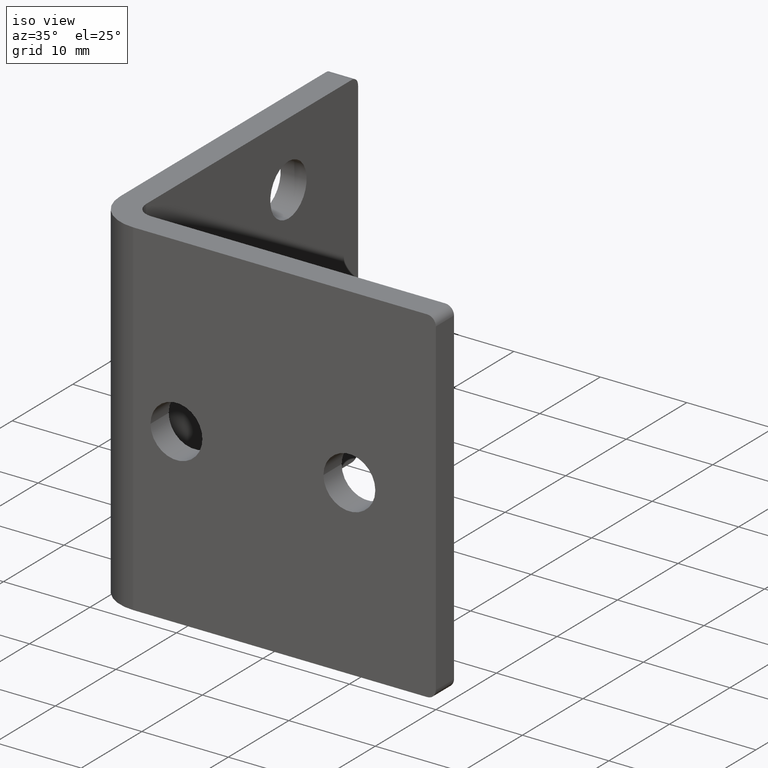
[diagram: clean part render]
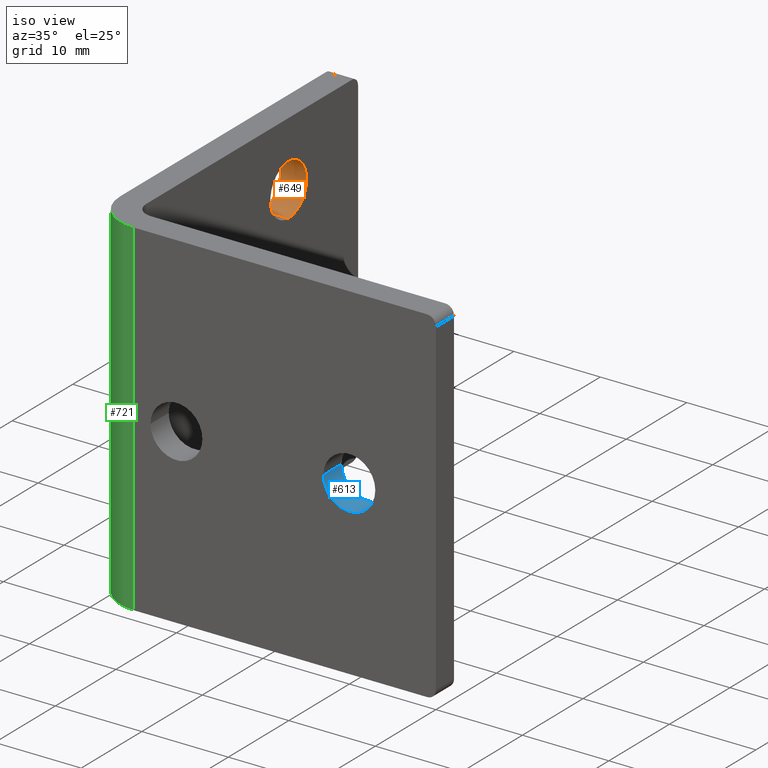
[diagram: same view with three faces highlighted in distinct colors, each labeled with its STEP entity id]
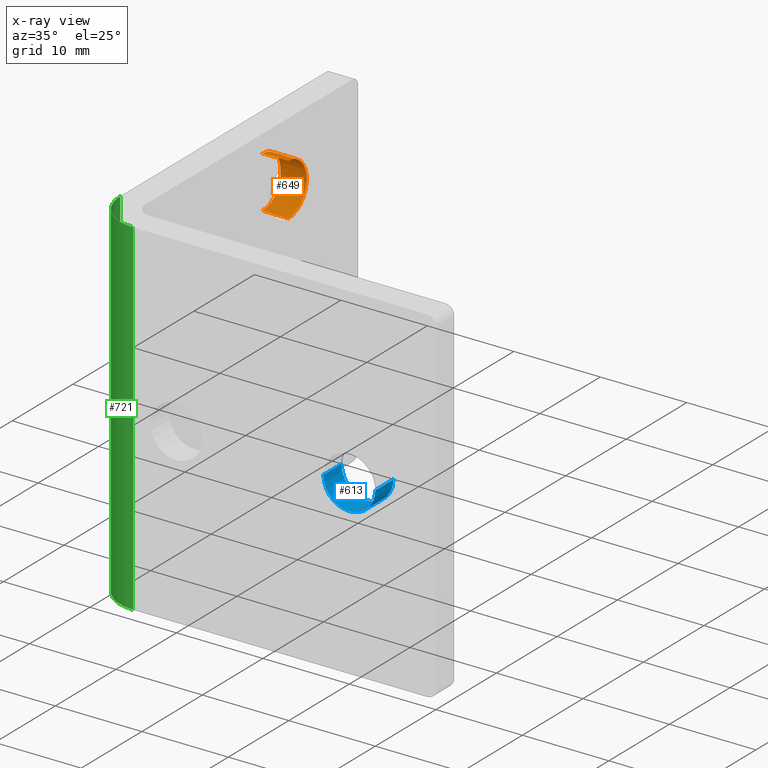
[diagram: x-ray of the same camera — body ghosted, the three highlighted faces saturated]
A machine part, iso view with three faces highlighted in distinct colors.
The next image is the same camera in x-ray (body ghosted, the three faces saturated) — at least one of them is partly hidden behind the body in this view.
Their STEP definitions:

[orange] entity #649 — the highlighted cylindrical surface (edge-blend (fillet) strip) has radius 3 mm, axis along (-1, 0, 0).
#7=CARTESIAN_POINT('',(-36.999999999999986,28.500000000000000,9.500000000000004));
#8=VERTEX_POINT('',#7);
#9=CARTESIAN_POINT('',(-36.999999999999986,28.500000000000000,15.500000000000000));
#10=VERTEX_POINT('',#9);
#18=CARTESIAN_POINT('',(-39.999999999999986,28.500000000000000,9.500000000000004));
#19=VERTEX_POINT('',#18);
#20=CARTESIAN_POINT('',(-36.999999999999993,28.500000000000000,9.500000000000004));
#21=DIRECTION('',(-1.0,0.0,0.0));
#22=VECTOR('',#21,2.999999999999993);
#23=LINE('',#20,#22);
#24=EDGE_CURVE('',#8,#19,#23,.T.);
#26=CARTESIAN_POINT('',(-39.999999999999986,28.500000000000000,15.500000000000000));
#27=VERTEX_POINT('',#26);
#35=CARTESIAN_POINT('',(-36.999999999999993,28.500000000000000,15.500000000000000));
#36=DIRECTION('',(-1.0,0.0,0.0));
#37=VECTOR('',#36,2.999999999999993);
#38=LINE('',#35,#37);
#39=EDGE_CURVE('',#10,#27,#38,.T.);
#237=CARTESIAN_POINT('',(-36.999999999999986,28.500000000000000,12.500000000000000));
#238=DIRECTION('',(-1.0,0.0,0.0));
#239=DIRECTION('',(0.0,0.0,1.0));
#240=AXIS2_PLACEMENT_3D('',#237,#238,#239);
#241=CIRCLE('',#240,3.0);
#242=EDGE_CURVE('',#10,#8,#241,.T.);
#493=CARTESIAN_POINT('',(-39.999999999999986,28.500000000000000,12.500000000000000));
#494=DIRECTION('',(-1.0,0.0,0.0));
#495=DIRECTION('',(0.0,1.0,0.0));
#496=AXIS2_PLACEMENT_3D('',#493,#494,#495);
#497=CIRCLE('',#496,2.999999999999999);
#498=EDGE_CURVE('',#27,#19,#497,.T.);
#638=CARTESIAN_POINT('',(-36.999999989999999,28.500000000000000,12.499999999999998));
#639=DIRECTION('',(-1.0,0.0,0.0));
#640=DIRECTION('',(0.0,-1.0,0.0));
#641=AXIS2_PLACEMENT_3D('',#638,#639,#640);
#642=CYLINDRICAL_SURFACE('',#641,3.0);
#643=ORIENTED_EDGE('',*,*,#24,.F.);
#644=ORIENTED_EDGE('',*,*,#242,.F.);
#645=ORIENTED_EDGE('',*,*,#39,.T.);
#646=ORIENTED_EDGE('',*,*,#498,.T.);
#647=EDGE_LOOP('',(#643,#644,#645,#646));
#648=FACE_OUTER_BOUND('',#647,.T.);
#649=ADVANCED_FACE('',(#648),#642,.F.);

[blue] entity #613 — the highlighted cylindrical surface (edge-blend (fillet) strip) has radius 3 mm, axis along (0, -1, 0).
#133=CARTESIAN_POINT('',(-7.000000000000004,2.999999999999993,0.0));
#134=VERTEX_POINT('',#133);
#135=CARTESIAN_POINT('',(-12.999999999999998,2.999999999999993,0.0));
#136=VERTEX_POINT('',#135);
#144=CARTESIAN_POINT('',(-7.000000000000004,0.0,0.0));
#145=VERTEX_POINT('',#144);
#146=CARTESIAN_POINT('',(-7.000000000000004,2.999999999999993,0.0));
#147=DIRECTION('',(0.0,-1.0,0.0));
#148=VECTOR('',#147,2.999999999999993);
#149=LINE('',#146,#148);
#150=EDGE_CURVE('',#134,#145,#149,.T.);
#152=CARTESIAN_POINT('',(-12.999999999999998,0.0,0.0));
#153=VERTEX_POINT('',#152);
#161=CARTESIAN_POINT('',(-12.999999999999998,2.999999999999993,0.0));
#162=DIRECTION('',(0.0,-1.0,0.0));
#163=VECTOR('',#162,2.999999999999993);
#164=LINE('',#161,#163);
#165=EDGE_CURVE('',#136,#153,#164,.T.);
#305=CARTESIAN_POINT('',(-10.0,2.999999999999993,0.0));
#306=DIRECTION('',(0.0,-1.0,0.0));
#307=DIRECTION('',(-1.0,0.0,0.0));
#308=AXIS2_PLACEMENT_3D('',#305,#306,#307);
#309=CIRCLE('',#308,2.999999999999999);
#310=EDGE_CURVE('',#136,#134,#309,.T.);
#406=CARTESIAN_POINT('',(-10.0,0.0,0.0));
#407=DIRECTION('',(0.0,1.0,0.0));
#408=DIRECTION('',(-1.0,0.0,0.0));
#409=AXIS2_PLACEMENT_3D('',#406,#407,#408);
#410=CIRCLE('',#409,2.999999999999999);
#411=EDGE_CURVE('',#145,#153,#410,.T.);
#602=CARTESIAN_POINT('',(-10.0,3.000000009999993,3.552714E-015));
#603=DIRECTION('',(0.0,-1.0,0.0));
#604=DIRECTION('',(0.0,0.0,1.0));
#605=AXIS2_PLACEMENT_3D('',#602,#603,#604);
#606=CYLINDRICAL_SURFACE('',#605,2.999999999999999);
#607=ORIENTED_EDGE('',*,*,#150,.F.);
#608=ORIENTED_EDGE('',*,*,#310,.F.);
#609=ORIENTED_EDGE('',*,*,#165,.T.);
#610=ORIENTED_EDGE('',*,*,#411,.F.);
#611=EDGE_LOOP('',(#607,#608,#609,#610));
#612=FACE_OUTER_BOUND('',#611,.T.);
#613=ADVANCED_FACE('',(#612),#606,.F.);

[green] entity #721 — the highlighted cylindrical surface (partial cylindrical patch) has radius 5 mm, axis along (0, 0, 1).
#364=CARTESIAN_POINT('',(-35.0,-7.105427E-015,20.0));
#365=VERTEX_POINT('',#364);
#372=CARTESIAN_POINT('',(-35.0,-7.105427E-015,-20.0));
#373=VERTEX_POINT('',#372);
#374=CARTESIAN_POINT('',(-35.0,-7.105427E-015,20.0));
#375=DIRECTION('',(0.0,0.0,-1.0));
#376=VECTOR('',#375,40.0);
#377=LINE('',#374,#376);
#378=EDGE_CURVE('',#365,#373,#377,.T.);
#431=CARTESIAN_POINT('',(-39.999999999999986,4.999999999999996,-20.0));
#432=VERTEX_POINT('',#431);
#441=CARTESIAN_POINT('',(-39.999999999999986,4.999999999999996,20.0));
#442=VERTEX_POINT('',#441);
#443=CARTESIAN_POINT('',(-39.999999999999986,4.999999999999996,-20.0));
#444=DIRECTION('',(0.0,0.0,1.0));
#445=VECTOR('',#444,40.0);
#446=LINE('',#443,#445);
#447=EDGE_CURVE('',#432,#442,#446,.T.);
#532=CARTESIAN_POINT('',(-35.0,4.999999999999996,-20.0));
#533=DIRECTION('',(0.0,0.0,-1.0));
#534=DIRECTION('',(1.0,0.0,0.0));
#535=AXIS2_PLACEMENT_3D('',#532,#533,#534);
#536=CIRCLE('',#535,4.999999999999997);
#537=EDGE_CURVE('',#373,#432,#536,.T.);
#570=CARTESIAN_POINT('',(-35.0,4.999999999999996,20.0));
#571=DIRECTION('',(0.0,0.0,1.0));
#572=DIRECTION('',(1.0,0.0,0.0));
#573=AXIS2_PLACEMENT_3D('',#570,#571,#572);
#574=CIRCLE('',#573,4.999999999999997);
#575=EDGE_CURVE('',#442,#365,#574,.T.);
#710=CARTESIAN_POINT('',(-35.0,4.999999999999996,-20.000000010000001));
#711=DIRECTION('',(0.0,0.0,1.0));
#712=DIRECTION('',(1.0,0.0,0.0));
#713=AXIS2_PLACEMENT_3D('',#710,#711,#712);
#714=CYLINDRICAL_SURFACE('',#713,4.999999999999997);
#715=ORIENTED_EDGE('',*,*,#537,.F.);
#716=ORIENTED_EDGE('',*,*,#378,.F.);
#717=ORIENTED_EDGE('',*,*,#575,.F.);
#718=ORIENTED_EDGE('',*,*,#447,.F.);
#719=EDGE_LOOP('',(#715,#716,#717,#718));
#720=FACE_OUTER_BOUND('',#719,.T.);
#721=ADVANCED_FACE('',(#720),#714,.T.);